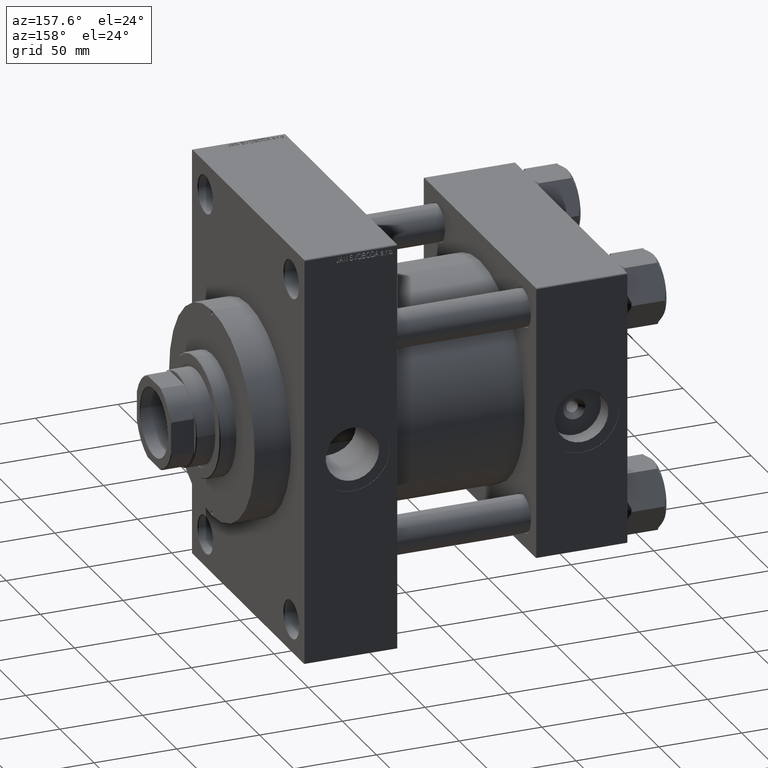
[diagram: clean part render]
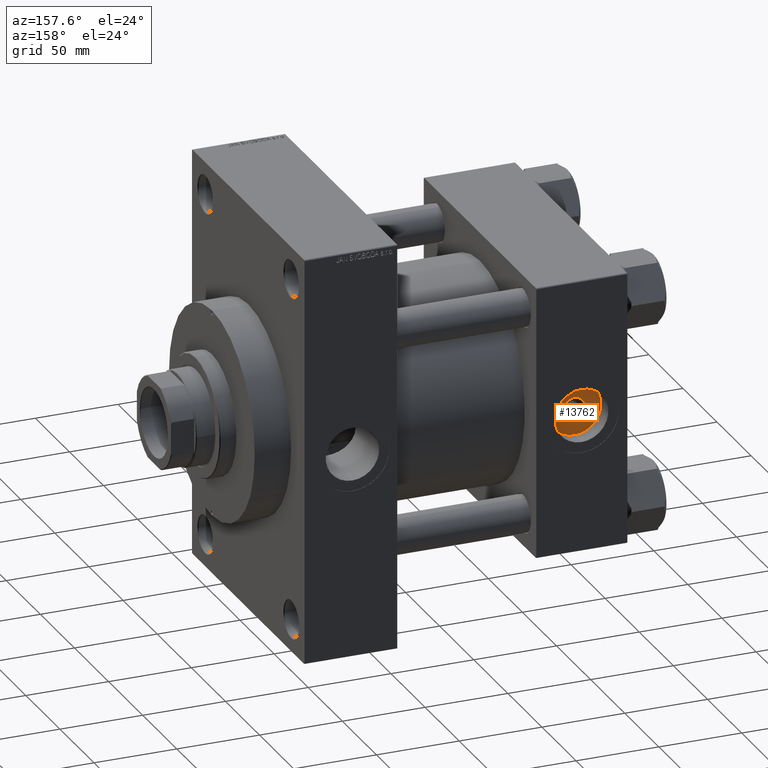
[diagram: same view with one face highlighted and labeled with its STEP entity id]
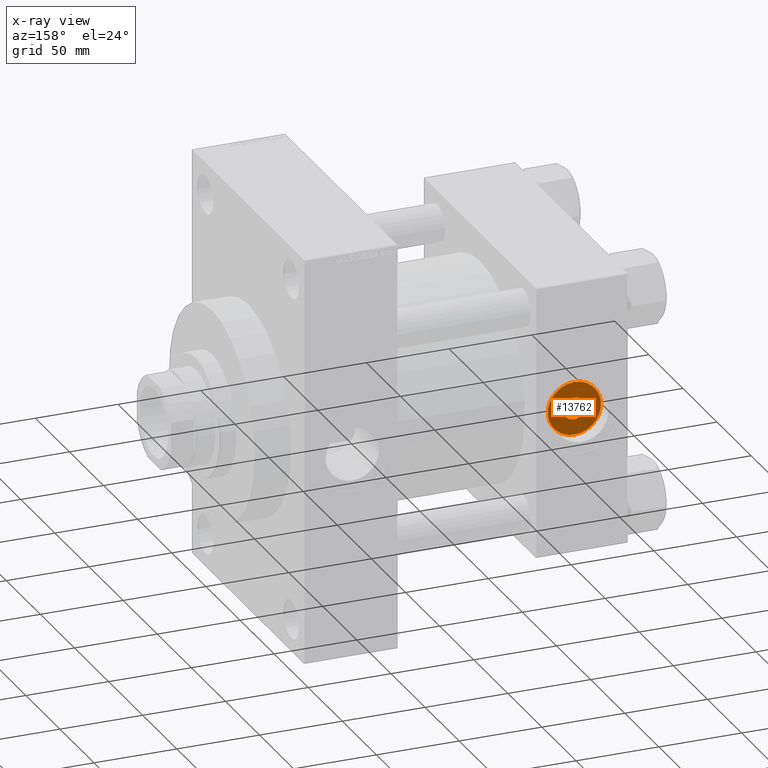
[diagram: x-ray of the same camera — body ghosted, the highlighted face saturated]
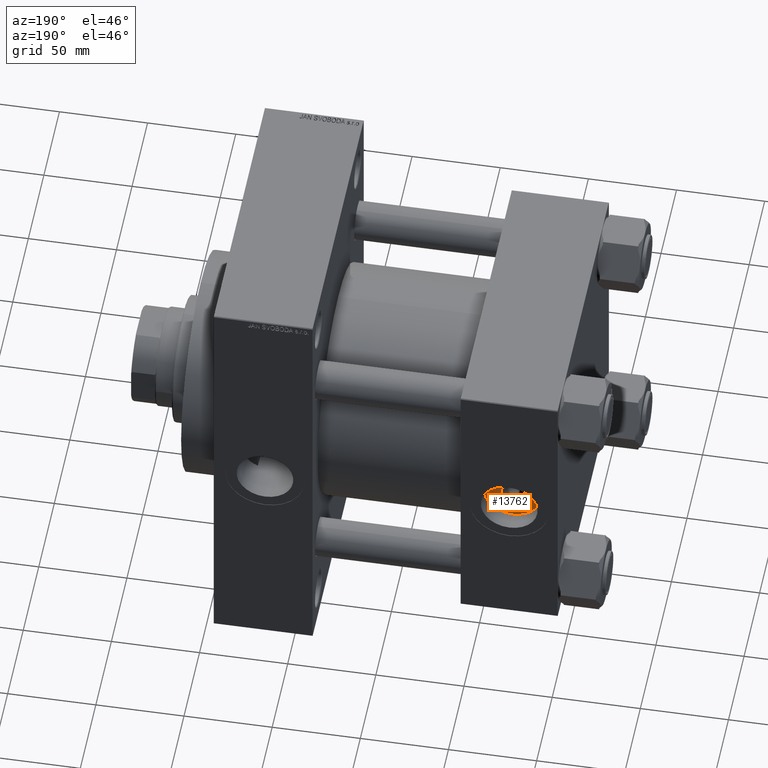
[diagram: same view with one face highlighted and labeled with its STEP entity id]
A machine part, auxiliary view. The second image highlights one B-rep face of the part: STEP entity #13762.
The next image is the same camera in x-ray: the body ghosted, the highlighted face saturated — about 0% of this face is hidden behind the body in this view.
A second angle (auxiliary view) of the same face is appended — the face is thin or edge-on in the first view.
In plain terms, the highlighted planar face has unit normal (0, 1, 0).
Its self-contained STEP definition (entity closure, byte-faithful):
#2056 = DIRECTION ( 'NONE',  ( 0.000000000000000000, 1.000000000000000000, 0.000000000000000000 ) ) ;
#5489 = EDGE_LOOP ( 'NONE', ( #31990, #15198 ) ) ;
#6159 = CARTESIAN_POINT ( 'NONE',  ( 27.50000000000000000, 71.50000000000002842, 0.000000000000000000 ) ) ;
#6446 = CIRCLE ( 'NONE', #34236, 6.640000000000173763 ) ;
#7224 = DIRECTION ( 'NONE',  ( -0.000000000000000000, -1.000000000000000000, -0.000000000000000000 ) ) ;
#7833 = VERTEX_POINT ( 'NONE', #35970 ) ;
#9432 = VERTEX_POINT ( 'NONE', #14909 ) ;
#10568 = DIRECTION ( 'NONE',  ( 0.000000000000000000, -0.000000000000000000, 1.000000000000000000 ) ) ;
#12158 = EDGE_CURVE ( 'NONE', #7833, #9432, #6446, .T. ) ;
#13762 = ADVANCED_FACE ( 'NONE', ( #47601, #21465 ), #36208, .T. ) ;
#14909 = CARTESIAN_POINT ( 'NONE',  ( 27.50000000000000000, 71.50000000000002842, -6.640000000000173763 ) ) ;
#15006 = EDGE_CURVE ( 'NONE', #21464, #20111, #17357, .T. ) ;
#15198 = ORIENTED_EDGE ( 'NONE', *, *, #15006, .T. ) ;
#15582 = DIRECTION ( 'NONE',  ( -0.000000000000000000, -1.000000000000000000, -0.000000000000000000 ) ) ;
#17357 = CIRCLE ( 'NONE', #24331, 16.12000000000000810 ) ;
#18071 = ORIENTED_EDGE ( 'NONE', *, *, #12158, .T. ) ;
#18112 = AXIS2_PLACEMENT_3D ( 'NONE', #40312, #40076, #10568 ) ;
#20111 = VERTEX_POINT ( 'NONE', #43188 ) ;
#21464 = VERTEX_POINT ( 'NONE', #29511 ) ;
#21465 = FACE_OUTER_BOUND ( 'NONE', #5489, .T. ) ;
#22950 = CARTESIAN_POINT ( 'NONE',  ( 27.50000000000000000, 71.50000000000002842, 0.000000000000000000 ) ) ;
#23841 = EDGE_CURVE ( 'NONE', #20111, #21464, #33071, .T. ) ;
#24331 = AXIS2_PLACEMENT_3D ( 'NONE', #22950, #30453, #34074 ) ;
#25347 = EDGE_CURVE ( 'NONE', #9432, #7833, #30064, .T. ) ;
#26952 = DIRECTION ( 'NONE',  ( 0.000000000000000000, 0.000000000000000000, 1.000000000000000000 ) ) ;
#29511 = CARTESIAN_POINT ( 'NONE',  ( 27.50000000000000355, 71.50000000000002842, -16.12000000000000810 ) ) ;
#30064 = CIRCLE ( 'NONE', #36251, 6.640000000000173763 ) ;
#30092 = EDGE_LOOP ( 'NONE', ( #18071, #44361 ) ) ;
#30453 = DIRECTION ( 'NONE',  ( 0.000000000000000000, 1.000000000000000000, 0.000000000000000000 ) ) ;
#31560 = DIRECTION ( 'NONE',  ( 0.000000000000000000, 0.000000000000000000, 1.000000000000000000 ) ) ;
#31990 = ORIENTED_EDGE ( 'NONE', *, *, #23841, .T. ) ;
#33071 = CIRCLE ( 'NONE', #36188, 16.12000000000000810 ) ;
#33104 = DIRECTION ( 'NONE',  ( 0.000000000000000000, 0.000000000000000000, 1.000000000000000000 ) ) ;
#34074 = DIRECTION ( 'NONE',  ( 0.000000000000000000, 0.000000000000000000, 1.000000000000000000 ) ) ;
#34236 = AXIS2_PLACEMENT_3D ( 'NONE', #40597, #7224, #33104 ) ;
#34923 = CARTESIAN_POINT ( 'NONE',  ( 27.50000000000000000, 71.50000000000002842, 0.000000000000000000 ) ) ;
#35970 = CARTESIAN_POINT ( 'NONE',  ( 27.50000000000000000, 71.50000000000002842, 6.640000000000173763 ) ) ;
#36188 = AXIS2_PLACEMENT_3D ( 'NONE', #6159, #2056, #31560 ) ;
#36208 = PLANE ( 'NONE',  #18112 ) ;
#36251 = AXIS2_PLACEMENT_3D ( 'NONE', #34923, #15582, #26952 ) ;
#40076 = DIRECTION ( 'NONE',  ( 0.000000000000000000, 1.000000000000000000, 0.000000000000000000 ) ) ;
#40312 = CARTESIAN_POINT ( 'NONE',  ( 27.50000000000000000, 71.50000000000002842, 0.000000000000000000 ) ) ;
#40597 = CARTESIAN_POINT ( 'NONE',  ( 27.50000000000000000, 71.50000000000002842, 0.000000000000000000 ) ) ;
#43188 = CARTESIAN_POINT ( 'NONE',  ( 27.50000000000000000, 71.50000000000002842, 16.12000000000000810 ) ) ;
#44361 = ORIENTED_EDGE ( 'NONE', *, *, #25347, .T. ) ;
#47601 = FACE_BOUND ( 'NONE', #30092, .T. ) ;